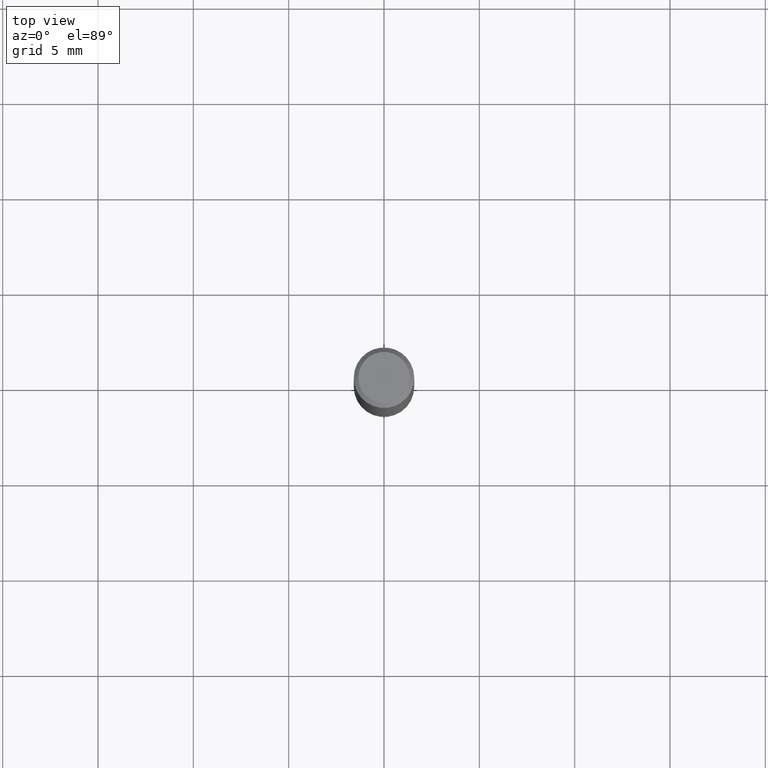
[diagram: clean part render]
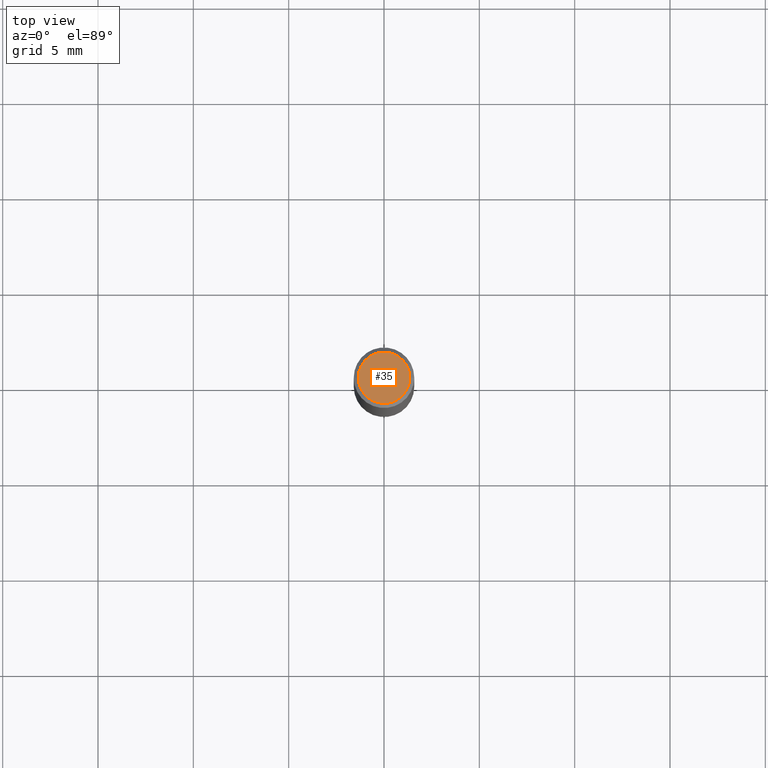
[diagram: same view with one face highlighted and labeled with its STEP entity id]
A machine part, top view. The second image highlights one B-rep face of the part: STEP entity #35.
In plain terms, the highlighted planar face has unit normal (0, -0, -1).
Its self-contained STEP definition (entity closure, byte-faithful):
#5 = CARTESIAN_POINT ( 'NONE',  ( 0.05312499999999999861, -4.129888592719939842E-16, -5.787680772767651417E-18 ) ) ;
#15 = CARTESIAN_POINT ( 'NONE',  ( 7.076796394983739835E-47, -1.010378970665454992E-32, -2.893840386385196200E-18 ) ) ;
#34 = DIRECTION ( 'NONE',  ( -2.445468806185136597E-29, 3.491481338843145583E-15, 1.000000000000000000 ) ) ;
#35 = ADVANCED_FACE ( 'NONE', ( #59 ), #515, .F. ) ;
#47 = AXIS2_PLACEMENT_3D ( 'NONE', #330, #564, #184 ) ;
#59 = FACE_OUTER_BOUND ( 'NONE', #558, .T. ) ;
#157 = DIRECTION ( 'NONE',  ( -1.000000000000000000, 6.982962677686265922E-15, -4.876176775795935793E-29 ) ) ;
#183 = ORIENTED_EDGE ( 'NONE', *, *, #475, .T. ) ;
#184 = DIRECTION ( 'NONE',  ( 1.000000000000000000, -6.982962677686266711E-15, 4.875930095424100059E-29 ) ) ;
#218 = DIRECTION ( 'NONE',  ( 1.000000000000000000, -6.982962677686266711E-15, 4.875930095424100059E-29 ) ) ;
#267 = CIRCLE ( 'NONE', #417, 0.05312499999999999861 ) ;
#288 = ORIENTED_EDGE ( 'NONE', *, *, #542, .T. ) ;
#303 = VERTEX_POINT ( 'NONE', #528 ) ;
#330 = CARTESIAN_POINT ( 'NONE',  ( 1.415359278996747967E-46, -2.020757941330909984E-32, -5.787680772770392401E-18 ) ) ;
#384 = CIRCLE ( 'NONE', #47, 0.05312499999999999861 ) ;
#395 = VERTEX_POINT ( 'NONE', #5 ) ;
#417 = AXIS2_PLACEMENT_3D ( 'NONE', #508, #34, #218 ) ;
#426 = DIRECTION ( 'NONE',  ( 2.438088387897960049E-29, -3.491481338843145188E-15, -1.000000000000000000 ) ) ;
#435 = AXIS2_PLACEMENT_3D ( 'NONE', #15, #426, #157 ) ;
#475 = EDGE_CURVE ( 'NONE', #303, #395, #267, .T. ) ;
#508 = CARTESIAN_POINT ( 'NONE',  ( 1.415359278996747967E-46, -2.020757941330909984E-32, -5.787680772770392401E-18 ) ) ;
#515 = PLANE ( 'NONE',  #435 ) ;
#528 = CARTESIAN_POINT ( 'NONE',  ( -0.05312499999999999861, 3.873362110279099094E-16, -5.787680772773044021E-18 ) ) ;
#542 = EDGE_CURVE ( 'NONE', #395, #303, #384, .T. ) ;
#558 = EDGE_LOOP ( 'NONE', ( #183, #288 ) ) ;
#564 = DIRECTION ( 'NONE',  ( -2.445468806185136597E-29, 3.491481338843145583E-15, 1.000000000000000000 ) ) ;